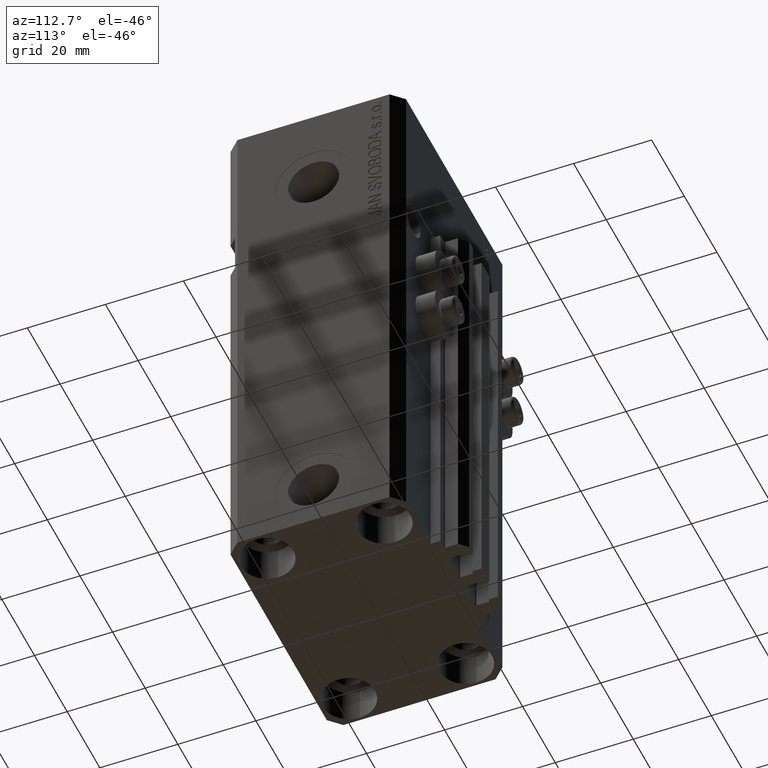
[diagram: clean part render]
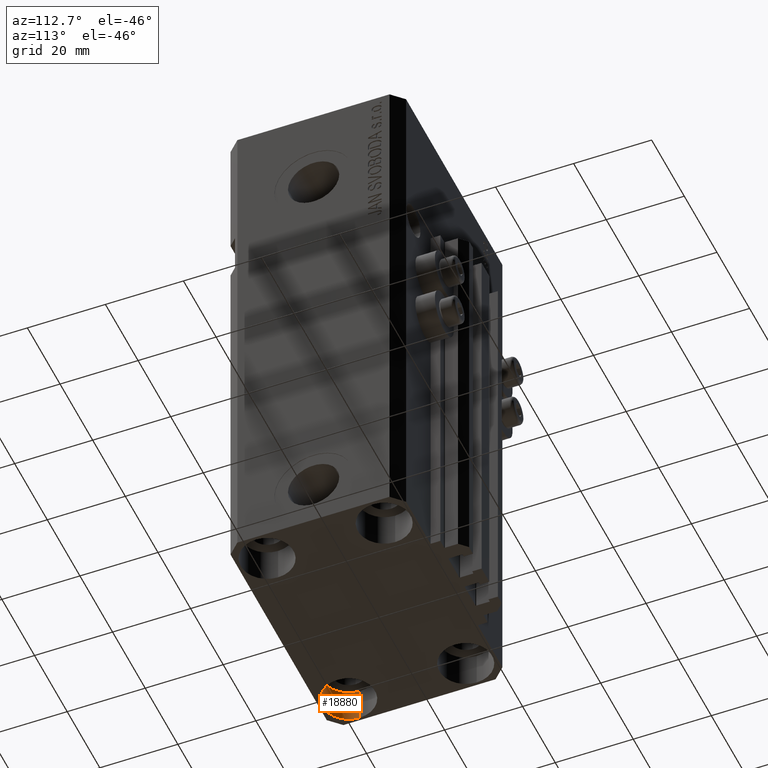
[diagram: same view with one face highlighted and labeled with its STEP entity id]
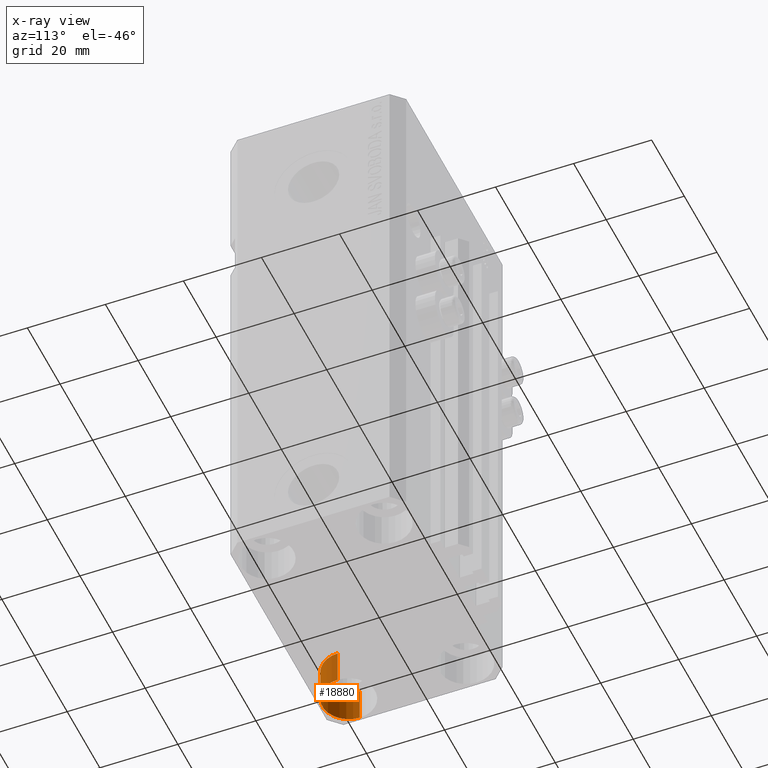
[diagram: x-ray of the same camera — body ghosted, the highlighted face saturated]
A machine part, auxiliary view. The second image highlights one B-rep face of the part: STEP entity #18880.
The next image is the same camera in x-ray: the body ghosted, the highlighted face saturated — about 0% of this face is hidden behind the body in this view.
In plain terms, the highlighted cylindrical surface (edge-blend (fillet) strip) has radius 6.75 mm, axis along (-0, -0, -1).
Its self-contained STEP definition (entity closure, byte-faithful):
#2574 = CIRCLE ( 'NONE', #30776, 6.750000000041541881 ) ;
#2575 = CARTESIAN_POINT ( 'NONE',  ( -18.24999999995845812, -15.00000000000000000, -137.0000000000000000 ) ) ;
#2652 = CARTESIAN_POINT ( 'NONE',  ( -18.24999999995845812, -15.00000000000000000, -128.0000000000000000 ) ) ;
#2964 = DIRECTION ( 'NONE',  ( -0.000000000000000000, -0.000000000000000000, -1.000000000000000000 ) ) ;
#3191 = EDGE_CURVE ( 'NONE', #26758, #24246, #2574, .T. ) ;
#5593 = DIRECTION ( 'NONE',  ( 1.000000000000000000, 0.000000000000000000, 0.000000000000000000 ) ) ;
#6194 = EDGE_CURVE ( 'NONE', #24246, #13511, #14506, .T. ) ;
#10485 = DIRECTION ( 'NONE',  ( -0.000000000000000000, -0.000000000000000000, 1.000000000000000000 ) ) ;
#10708 = CIRCLE ( 'NONE', #22100, 6.750000000041541881 ) ;
#12707 = ORIENTED_EDGE ( 'NONE', *, *, #6194, .T. ) ;
#12773 = CYLINDRICAL_SURFACE ( 'NONE', #40220, 6.750000000041545434 ) ;
#13483 = FACE_OUTER_BOUND ( 'NONE', #35775, .T. ) ;
#13511 = VERTEX_POINT ( 'NONE', #2575 ) ;
#13551 = ORIENTED_EDGE ( 'NONE', *, *, #3191, .T. ) ;
#14506 = LINE ( 'NONE', #28579, #21746 ) ;
#17237 = ORIENTED_EDGE ( 'NONE', *, *, #39941, .F. ) ;
#17858 = DIRECTION ( 'NONE',  ( -0.000000000000000000, -0.000000000000000000, -1.000000000000000000 ) ) ;
#17884 = CARTESIAN_POINT ( 'NONE',  ( -25.00000000000000355, -15.00000000000000000, -128.0000000000000000 ) ) ;
#18880 = ADVANCED_FACE ( 'NONE', ( #13483 ), #12773, .F. ) ;
#19741 = ORIENTED_EDGE ( 'NONE', *, *, #45563, .F. ) ;
#20147 = DIRECTION ( 'NONE',  ( -0.000000000000000000, -0.000000000000000000, 1.000000000000000000 ) ) ;
#21746 = VECTOR ( 'NONE', #17858, 1000.000000000000000 ) ;
#22100 = AXIS2_PLACEMENT_3D ( 'NONE', #23021, #20147, #5593 ) ;
#23021 = CARTESIAN_POINT ( 'NONE',  ( -25.00000000000000355, -15.00000000000000000, -137.0000000000000000 ) ) ;
#24246 = VERTEX_POINT ( 'NONE', #2652 ) ;
#25020 = DIRECTION ( 'NONE',  ( 1.000000000000000000, 0.000000000000000000, 0.000000000000000000 ) ) ;
#26758 = VERTEX_POINT ( 'NONE', #39587 ) ;
#27410 = VERTEX_POINT ( 'NONE', #29661 ) ;
#27776 = DIRECTION ( 'NONE',  ( -1.000000000000000000, 0.000000000000000000, 0.000000000000000000 ) ) ;
#28579 = CARTESIAN_POINT ( 'NONE',  ( -18.24999999995846167, -15.00000000000000000, -128.0000000000000000 ) ) ;
#29661 = CARTESIAN_POINT ( 'NONE',  ( -31.75000000004154899, -15.00000000000000000, -137.0000000000000000 ) ) ;
#30776 = AXIS2_PLACEMENT_3D ( 'NONE', #17884, #10485, #25020 ) ;
#30889 = CARTESIAN_POINT ( 'NONE',  ( -25.00000000000000355, -15.00000000000000000, -128.0000000000000000 ) ) ;
#32515 = LINE ( 'NONE', #36562, #43029 ) ;
#35775 = EDGE_LOOP ( 'NONE', ( #13551, #12707, #19741, #17237 ) ) ;
#36562 = CARTESIAN_POINT ( 'NONE',  ( -31.75000000004154899, -15.00000000000000000, -128.0000000000000000 ) ) ;
#39587 = CARTESIAN_POINT ( 'NONE',  ( -31.75000000004154899, -15.00000000000000000, -128.0000000000000000 ) ) ;
#39669 = DIRECTION ( 'NONE',  ( -0.000000000000000000, -0.000000000000000000, -1.000000000000000000 ) ) ;
#39941 = EDGE_CURVE ( 'NONE', #26758, #27410, #32515, .T. ) ;
#40220 = AXIS2_PLACEMENT_3D ( 'NONE', #30889, #2964, #27776 ) ;
#43029 = VECTOR ( 'NONE', #39669, 1000.000000000000000 ) ;
#45563 = EDGE_CURVE ( 'NONE', #27410, #13511, #10708, .T. ) ;